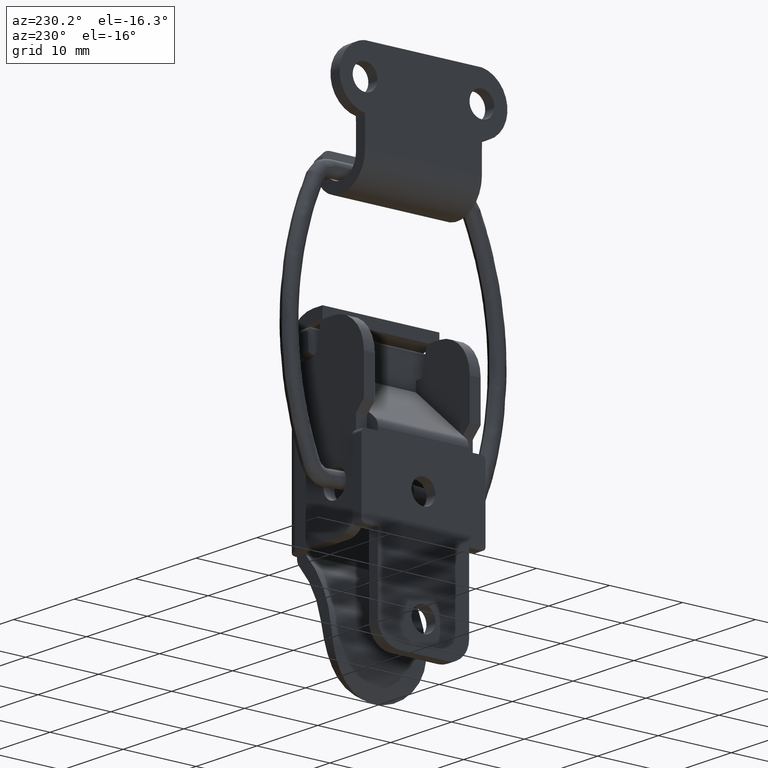
[diagram: clean part render]
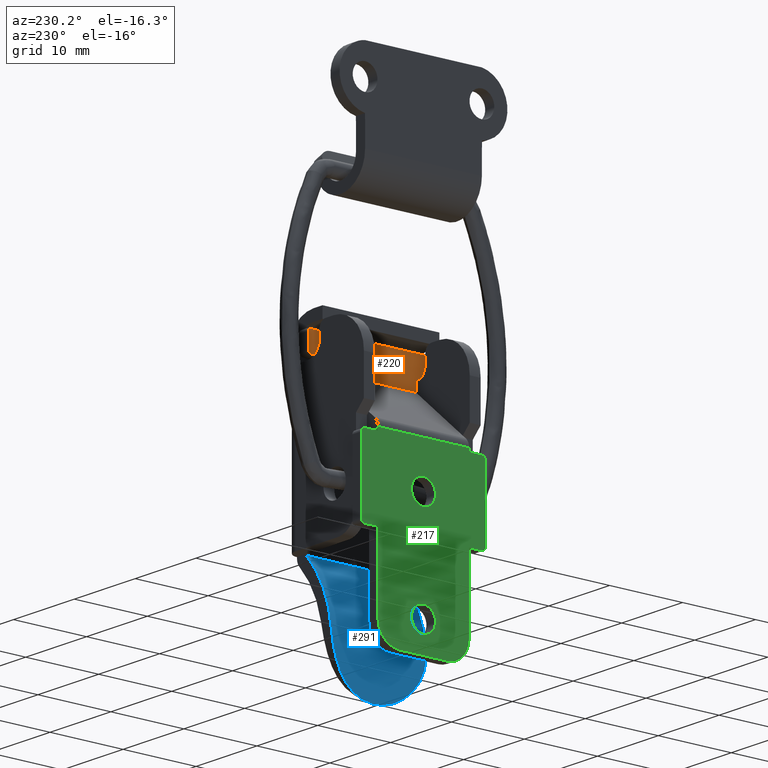
[diagram: same view with three faces highlighted in distinct colors, each labeled with its STEP entity id]
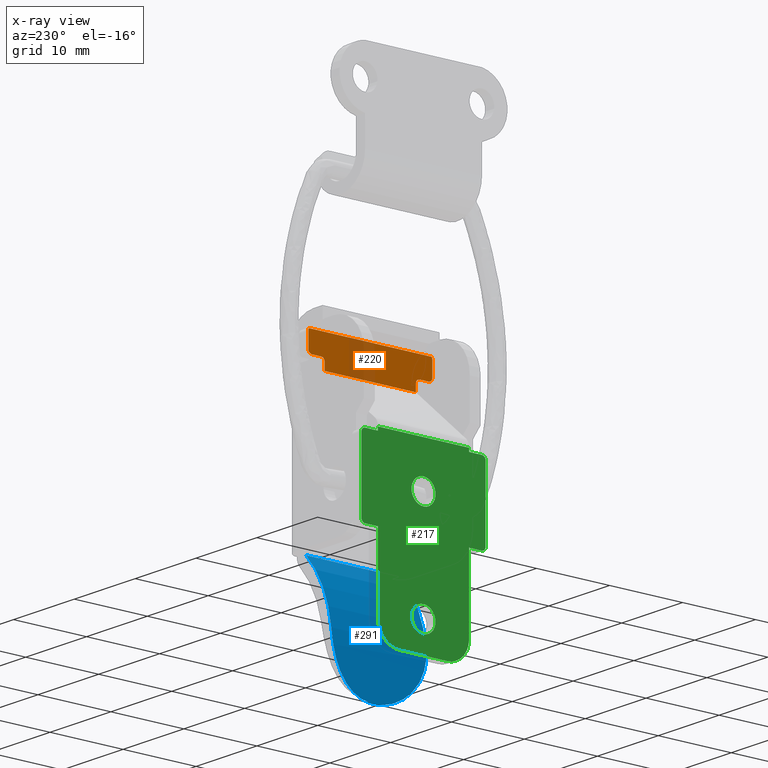
[diagram: x-ray of the same camera — body ghosted, the three highlighted faces saturated]
A machine part, auxiliary view with three faces highlighted in distinct colors.
The next image is the same camera in x-ray (body ghosted, the three faces saturated) — at least one of them is partly hidden behind the body in this view.
Their STEP definitions:

[orange] entity #220 — the highlighted planar face has unit normal (1, 0, 0).
#220=ADVANCED_FACE('',(#659),#658,.F.);
#658=PLANE('',#1955);
#659=FACE_OUTER_BOUND('',#1956,.T.);
#1952=CARTESIAN_POINT('',(8.75000000000E+00,-1.70000000000E+00,1.87300000000E+01));
#1953=DIRECTION('',(1.00000000000E+00,0.00000000000E+00,0.00000000000E+00));
#1954=DIRECTION('',(0.00000000000E+00,0.00000000000E+00,-1.00000000000E+00));
#1955=AXIS2_PLACEMENT_3D('',#1952,#1953,#1954);
#1956=EDGE_LOOP('',(#2620,#2621,#2622,#2623,#2624,#2625,#2626,#2627,#2628,#2629,#2630,#2631,#2632,#2633));
#2620=ORIENTED_EDGE('',*,*,#3252,.T.);
#2621=ORIENTED_EDGE('',*,*,#3253,.T.);
#2622=ORIENTED_EDGE('',*,*,#3174,.T.);
#2623=ORIENTED_EDGE('',*,*,#3254,.T.);
#2624=ORIENTED_EDGE('',*,*,#3168,.F.);
#2625=ORIENTED_EDGE('',*,*,#3167,.T.);
#2626=ORIENTED_EDGE('',*,*,#3173,.F.);
#2627=ORIENTED_EDGE('',*,*,#3255,.T.);
#2628=ORIENTED_EDGE('',*,*,#3256,.F.);
#2629=ORIENTED_EDGE('',*,*,#3257,.T.);
#2630=ORIENTED_EDGE('',*,*,#3258,.F.);
#2631=ORIENTED_EDGE('',*,*,#3250,.T.);
#2632=ORIENTED_EDGE('',*,*,#3259,.T.);
#2633=ORIENTED_EDGE('',*,*,#3260,.T.);
#3167=EDGE_CURVE('',#3742,#3770,#3777,.T.);
#3168=EDGE_CURVE('',#3742,#3783,#3784,.T.);
#3173=EDGE_CURVE('',#3810,#3770,#3817,.T.);
#3174=EDGE_CURVE('',#3823,#3824,#3825,.T.);
#3250=EDGE_CURVE('',#4343,#4336,#4344,.T.);
#3252=EDGE_CURVE('',#4356,#4357,#4358,.T.);
#3253=EDGE_CURVE('',#4357,#3823,#4364,.T.);
#3254=EDGE_CURVE('',#3824,#3783,#4370,.T.);
#3255=EDGE_CURVE('',#3810,#4376,#4377,.T.);
#3256=EDGE_CURVE('',#4383,#4376,#4384,.T.);
#3257=EDGE_CURVE('',#4383,#4390,#4391,.T.);
#3258=EDGE_CURVE('',#4343,#4390,#4397,.T.);
#3259=EDGE_CURVE('',#4336,#4403,#4404,.T.);
#3260=EDGE_CURVE('',#4403,#4356,#4410,.T.);
#3742=VERTEX_POINT('',#5937);
#3770=VERTEX_POINT('',#5960);
#3777=CIRCLE('',#5967,5.00000000000E-01);
#3783=VERTEX_POINT('',#5968);
#3784=LINE('',#5969,#5970);
#3810=VERTEX_POINT('',#5986);
#3817=LINE('',#5990,#5991);
#3823=VERTEX_POINT('',#5993);
#3824=VERTEX_POINT('',#5994);
#3825=LINE('',#5995,#5996);
#4336=VERTEX_POINT('',#6312);
#4343=VERTEX_POINT('',#6316);
#4344=LINE('',#6317,#6318);
#4356=VERTEX_POINT('',#6323);
#4357=VERTEX_POINT('',#6324);
#4358=LINE('',#6325,#6326);
#4364=CIRCLE('',#6331,5.00000000000E-01);
#4370=CIRCLE('',#6335,5.00000000000E-01);
#4376=VERTEX_POINT('',#6336);
#4377=CIRCLE('',#6340,5.00000000000E-01);
#4383=VERTEX_POINT('',#6341);
#4384=LINE('',#6342,#6343);
#4390=VERTEX_POINT('',#6345);
#4391=CIRCLE('',#6349,5.00000000000E-01);
#4397=LINE('',#6350,#6351);
#4403=VERTEX_POINT('',#6353);
#4404=LINE('',#6354,#6355);
#4410=CIRCLE('',#6360,5.00000000000E-01);
#5937=CARTESIAN_POINT('',(8.75000000000E+00,1.69000000000E+01,1.83000000000E+01));
#5960=CARTESIAN_POINT('',(8.75000000000E+00,1.70000000000E+01,1.80000000000E+01));
#5964=CARTESIAN_POINT('',(8.75000000000E+00,1.65000000000E+01,1.80000000000E+01));
#5965=DIRECTION('',(-1.00000000000E+00,-0.00000000000E+00,-0.00000000000E+00));
#5966=DIRECTION('',(-0.00000000000E+00,-0.00000000000E+00,1.00000000000E+00));
#5967=AXIS2_PLACEMENT_3D('',#5964,#5965,#5966);
#5968=CARTESIAN_POINT('',(8.75000000000E+00,1.00000000000E-01,1.83000000000E+01));
#5969=CARTESIAN_POINT('',(8.75000000000E+00,1.69000000000E+01,1.83000000000E+01));
#5970=VECTOR('',#5971,1.68000000000E+01);
#5971=DIRECTION('',(0.00000000000E+00,-1.00000000000E+00,0.00000000000E+00));
#5986=CARTESIAN_POINT('',(8.75000000000E+00,1.70000000000E+01,1.60000000000E+01));
#5990=CARTESIAN_POINT('',(8.75000000000E+00,1.70000000000E+01,1.60000000000E+01));
#5991=VECTOR('',#5992,2.00000000000E+00);
#5992=DIRECTION('',(0.00000000000E+00,0.00000000000E+00,1.00000000000E+00));
#5993=CARTESIAN_POINT('',(8.75000000000E+00,0.00000000000E+00,1.60000000000E+01));
#5994=CARTESIAN_POINT('',(8.75000000000E+00,0.00000000000E+00,1.80000000000E+01));
#5995=CARTESIAN_POINT('',(8.75000000000E+00,0.00000000000E+00,1.60000000000E+01));
#5996=VECTOR('',#5997,2.00000000000E+00);
#5997=DIRECTION('',(0.00000000000E+00,0.00000000000E+00,1.00000000000E+00));
#6312=CARTESIAN_POINT('',(8.75000000000E+00,2.25000000000E+00,1.39999999999E+01));
#6316=CARTESIAN_POINT('',(8.75000000000E+00,1.47500000000E+01,1.39999999999E+01));
#6317=CARTESIAN_POINT('',(8.75000000000E+00,1.47500000000E+01,1.39999999999E+01));
#6318=VECTOR('',#6319,1.25000000000E+01);
#6319=DIRECTION('',(0.00000000000E+00,-1.00000000000E+00,0.00000000000E+00));
#6323=CARTESIAN_POINT('',(8.75000000000E+00,1.75000000000E+00,1.55000000000E+01));
#6324=CARTESIAN_POINT('',(8.75000000000E+00,5.00000000000E-01,1.55000000000E+01));
#6325=CARTESIAN_POINT('',(8.75000000000E+00,1.75000000000E+00,1.55000000000E+01));
#6326=VECTOR('',#6327,1.25000000000E+00);
#6327=DIRECTION('',(0.00000000000E+00,-1.00000000000E+00,0.00000000000E+00));
#6328=CARTESIAN_POINT('',(8.75000000000E+00,5.00000000000E-01,1.60000000000E+01));
#6329=DIRECTION('',(-1.00000000000E+00,-0.00000000000E+00,-0.00000000000E+00));
#6330=DIRECTION('',(-0.00000000000E+00,-0.00000000000E+00,1.00000000000E+00));
#6331=AXIS2_PLACEMENT_3D('',#6328,#6329,#6330);
#6332=CARTESIAN_POINT('',(8.75000000000E+00,5.00000000000E-01,1.80000000000E+01));
#6333=DIRECTION('',(-1.00000000000E+00,-0.00000000000E+00,-0.00000000000E+00));
#6334=DIRECTION('',(-0.00000000000E+00,-0.00000000000E+00,1.00000000000E+00));
#6335=AXIS2_PLACEMENT_3D('',#6332,#6333,#6334);
#6336=CARTESIAN_POINT('',(8.75000000000E+00,1.65000000000E+01,1.55000000000E+01));
#6337=CARTESIAN_POINT('',(8.74999999999E+00,1.65000000000E+01,1.60000000000E+01));
#6338=DIRECTION('',(-1.00000000000E+00,-0.00000000000E+00,-0.00000000000E+00));
#6339=DIRECTION('',(-0.00000000000E+00,-0.00000000000E+00,1.00000000000E+00));
#6340=AXIS2_PLACEMENT_3D('',#6337,#6338,#6339);
#6341=CARTESIAN_POINT('',(8.75000000000E+00,1.52500000000E+01,1.55000000000E+01));
#6342=CARTESIAN_POINT('',(8.75000000000E+00,1.52500000000E+01,1.55000000000E+01));
#6343=VECTOR('',#6344,1.25000000000E+00);
#6344=DIRECTION('',(0.00000000000E+00,1.00000000000E+00,0.00000000000E+00));
#6345=CARTESIAN_POINT('',(8.75000000000E+00,1.47500000000E+01,1.50000000000E+01));
#6346=CARTESIAN_POINT('',(8.74999999999E+00,1.52500000000E+01,1.50000000000E+01));
#6347=DIRECTION('',(1.00000000000E+00,0.00000000000E+00,0.00000000000E+00));
#6348=DIRECTION('',(-0.00000000000E+00,-0.00000000000E+00,1.00000000000E+00));
#6349=AXIS2_PLACEMENT_3D('',#6346,#6347,#6348);
#6350=CARTESIAN_POINT('',(8.75000000000E+00,1.47500000000E+01,1.39999999999E+01));
#6351=VECTOR('',#6352,1.00000000013E+00);
#6352=DIRECTION('',(0.00000000000E+00,0.00000000000E+00,1.00000000000E+00));
#6353=CARTESIAN_POINT('',(8.75000000000E+00,2.25000000000E+00,1.50000000000E+01));
#6354=CARTESIAN_POINT('',(8.75000000000E+00,2.25000000000E+00,1.39999999999E+01));
#6355=VECTOR('',#6356,1.00000000013E+00);
#6356=DIRECTION('',(0.00000000000E+00,0.00000000000E+00,1.00000000000E+00));
#6357=CARTESIAN_POINT('',(8.74999999999E+00,1.75000000000E+00,1.50000000000E+01));
#6358=DIRECTION('',(1.00000000000E+00,0.00000000000E+00,0.00000000000E+00));
#6359=DIRECTION('',(-0.00000000000E+00,-0.00000000000E+00,1.00000000000E+00));
#6360=AXIS2_PLACEMENT_3D('',#6357,#6358,#6359);

[blue] entity #291 — the highlighted cylindrical surface (partial cylindrical patch) has radius 15.5 mm, axis along (0, 1, 0).
#291=ADVANCED_FACE('',(#1373),#1372,.T.);
#1372=CYLINDRICAL_SURFACE('',#2314,1.55000000000E+01);
#1373=FACE_OUTER_BOUND('',#2315,.T.);
#2311=CARTESIAN_POINT('',(1.77643212487E+01,1.00000000000E+03,-1.67828475794E+01));
#2312=DIRECTION('',(-0.00000000000E+00,1.00000000000E+00,0.00000000000E+00));
#2313=DIRECTION('',(-0.00000000000E+00,-0.00000000000E+00,1.00000000000E+00));
#2314=AXIS2_PLACEMENT_3D('',#2311,#2312,#2313);
#2315=EDGE_LOOP('',(#2999,#3000,#3001,#3002));
#2999=ORIENTED_EDGE('',*,*,#3307,.F.);
#3000=ORIENTED_EDGE('',*,*,#3301,.T.);
#3001=ORIENTED_EDGE('',*,*,#3304,.T.);
#3002=ORIENTED_EDGE('',*,*,#3381,.F.);
#3301=EDGE_CURVE('',#4671,#4672,#4673,.T.);
#3304=EDGE_CURVE('',#4672,#4691,#4692,.T.);
#3307=EDGE_CURVE('',#4671,#4711,#4712,.T.);
#3381=EDGE_CURVE('',#4711,#4691,#5206,.T.);
#4671=VERTEX_POINT('',#6564);
#4672=VERTEX_POINT('',#6565);
#4673=(BOUNDED_CURVE() B_SPLINE_CURVE(3,(#6566,#6567,#6568,#6569,#6570,#6571,#6572,#6573,#6574,#6575,#6576,#6577,#6578,#6579,#6580,#6581,#6582,#6583,#6584,#6585,#6586,#6587,#6588,#6589,#6590,#6591,#6592,#6593,#6594,#6595,#6596,#6597,#6598,#6599,#6600,#6601,#6602,#6603,#6604,#6605,#6606,#6607,#6608,#6609,#6610,#6611,#6612,#6613),.UNSPECIFIED.,.F.,.F.) B_SPLINE_CURVE_WITH_KNOTS((4,2,2,2,2,2,2,2,2,2,2,2,2,2,2,2,2,2,2,2,2,2,2,4),(-1.07861204129E-02,-9.43834462697E-03,-8.76445673402E-03,-8.09056884108E-03,-6.74279305519E-03,-6.06890516224E-03,-5.39501726930E-03,-4.04724148341E-03,-3.37335359046E-03,-2.69946569752E-03,-2.02557780457E-03,-1.35168991163E-03,-3.91412573858E-06,1.34386166015E-03,2.69163744604E-03,4.03941323193E-03,4.71330112488E-03,5.38718901782E-03,6.06107691077E-03,6.73496480371E-03,8.08274058960E-03,8.75662848255E-03,9.43051637549E-03,1.07782921614E-02),.UNSPECIFIED.) CURVE() GEOMETRIC_REPRESENTATION_ITEM() RATIONAL_B_SPLINE_CURVE((1.00000000000E+00,1.00000000000E+00,1.00000000000E+00,1.00000000000E+00,1.00000000000E+00,1.00000000000E+00,1.00000000000E+00,1.00000000000E+00,1.00000000000E+00,1.00000000000E+00,1.00000000000E+00,1.00000000000E+00,1.00000000000E+00,1.00000000000E+00,1.00000000000E+00,1.00000000000E+00,1.00000000000E+00,1.00000000000E+00,1.00000000000E+00,1.00000000000E+00,1.00000000000E+00,1.00000000000E+00,1.00000000000E+00,1.00000000000E+00,1.00000000000E+00,1.00000000000E+00,1.00000000000E+00,1.00000000000E+00,1.00000000000E+00,1.00000000000E+00,1.00000000000E+00,1.00000000000E+00,1.00000000000E+00,1.00000000000E+00,1.00000000000E+00,1.00000000000E+00,1.00000000000E+00,1.00000000000E+00,1.00000000000E+00,1.00000000000E+00,1.00000000000E+00,1.00000000000E+00,1.00000000000E+00,1.00000000000E+00,1.00000000000E+00,1.00000000000E+00,1.00000000000E+00,1.00000000000E+00)) REPRESENTATION_ITEM('') );
#4691=VERTEX_POINT('',#6620);
#4692=CIRCLE('',#6624,1.55000000000E+01);
#4711=VERTEX_POINT('',#6632);
#4712=CIRCLE('',#6636,1.55000000000E+01);
#5206=LINE('',#6927,#6928);
#6564=CARTESIAN_POINT('',(2.37406817584E+00,1.45000000000E+01,-1.49416223479E+01));
#6565=CARTESIAN_POINT('',(2.37406817584E+00,1.50000000000E+00,-1.49416223479E+01));
#6566=CARTESIAN_POINT('',(2.37406817581E+00,1.45000000000E+01,-1.49416223479E+01));
#6567=CARTESIAN_POINT('',(2.32010073919E+00,1.45000000000E+01,-1.53927200698E+01));
#6568=CARTESIAN_POINT('',(2.28661977557E+00,1.44700851394E+01,-1.58405411075E+01));
#6569=CARTESIAN_POINT('',(2.26519851493E+00,1.43730175159E+01,-1.65062782782E+01));
#6570=CARTESIAN_POINT('',(2.26286295814E+00,1.43319279410E+01,-1.67271870778E+01));
#6571=CARTESIAN_POINT('',(2.26751727409E+00,1.42304869152E+01,-1.71667405305E+01));
#6572=CARTESIAN_POINT('',(2.27459337156E+00,1.41696778042E+01,-1.73866780860E+01));
#6573=CARTESIAN_POINT('',(2.30868083218E+00,1.39587940705E+01,-1.80311677578E+01));
#6574=CARTESIAN_POINT('',(2.34823144728E+00,1.37811566033E+01,-1.84402914820E+01));
#6575=CARTESIAN_POINT('',(2.42563185691E+00,1.34547862220E+01,-1.90217857220E+01));
#6576=CARTESIAN_POINT('',(2.45444876656E+00,1.33359684619E+01,-1.92102303042E+01));
#6577=CARTESIAN_POINT('',(2.51689882690E+00,1.30768917387E+01,-1.95757836337E+01));
#6578=CARTESIAN_POINT('',(2.55062927812E+00,1.29361699838E+01,-1.97531346662E+01));
#6579=CARTESIAN_POINT('',(2.65408095394E+00,1.24920506927E+01,-2.02536908843E+01));
#6580=CARTESIAN_POINT('',(2.72682966372E+00,1.21636732685E+01,-2.05507330874E+01));
#6581=CARTESIAN_POINT('',(2.83225788151E+00,1.16216501488E+01,-2.09423862787E+01));
#6582=CARTESIAN_POINT('',(2.86699022161E+00,1.14314276028E+01,-2.10645342763E+01));
#6583=CARTESIAN_POINT('',(2.93238259597E+00,1.10415476553E+01,-2.12858364205E+01));
#6584=CARTESIAN_POINT('',(2.96310753981E+00,1.08417480040E+01,-2.13853196508E+01));
#6585=CARTESIAN_POINT('',(3.01949172518E+00,1.04326651316E+01,-2.15628767369E+01));
#6586=CARTESIAN_POINT('',(3.04515342656E+00,1.02233819526E+01,-2.16409499193E+01));
#6587=CARTESIAN_POINT('',(3.09036150410E+00,9.79525832054E+00,-2.17758391812E+01));
#6588=CARTESIAN_POINT('',(3.10998112763E+00,9.57530513620E+00,-2.18328612318E+01));
#6589=CARTESIAN_POINT('',(3.15750754823E+00,8.90938233595E+00,-2.19693958160E+01));
#6590=CARTESIAN_POINT('',(3.17408233479E+00,8.45960706527E+00,-2.20149531322E+01));
#6591=CARTESIAN_POINT('',(3.17427359393E+00,7.54833263274E+00,-2.20154864464E+01));
#6592=CARTESIAN_POINT('',(3.15789068640E+00,7.10070602666E+00,-2.19704380887E+01));
#6593=CARTESIAN_POINT('',(3.09579621969E+00,6.22137294315E+00,-2.17921671476E+01));
#6594=CARTESIAN_POINT('',(3.04923567818E+00,5.78492313875E+00,-2.16563292728E+01));
#6595=CARTESIAN_POINT('',(2.93657149666E+00,4.96398807469E+00,-2.13019630299E+01));
#6596=CARTESIAN_POINT('',(2.87058136450E+00,4.57671119654E+00,-2.10839688236E+01));
#6597=CARTESIAN_POINT('',(2.76485140554E+00,4.03117671283E+00,-2.06923472083E+01));
#6598=CARTESIAN_POINT('',(2.72848538057E+00,3.85537282473E+00,-2.05507597958E+01));
#6599=CARTESIAN_POINT('',(2.65687034223E+00,3.52427384557E+00,-2.02524945114E+01));
#6600=CARTESIAN_POINT('',(2.62139863337E+00,3.36779860799E+00,-2.00950284643E+01));
#6601=CARTESIAN_POINT('',(2.55268186556E+00,3.07249533558E+00,-1.97635647457E+01));
#6602=CARTESIAN_POINT('',(2.51943408350E+00,2.93366935224E+00,-1.95895657686E+01));
#6603=CARTESIAN_POINT('',(2.45676466609E+00,2.67359886255E+00,-1.92247655025E+01));
#6604=CARTESIAN_POINT('',(2.42726634904E+00,2.55201683032E+00,-1.90331193647E+01));
#6605=CARTESIAN_POINT('',(2.34875833699E+00,2.22123682574E+00,-1.84460747212E+01));
#6606=CARTESIAN_POINT('',(2.30902271226E+00,2.04283204814E+00,-1.80351534122E+01));
#6607=CARTESIAN_POINT('',(2.27479564909E+00,1.83181407633E+00,-1.73917214470E+01));
#6608=CARTESIAN_POINT('',(2.26762875994E+00,1.77077365688E+00,-1.71716563636E+01));
#6609=CARTESIAN_POINT('',(2.26284019406E+00,1.66872345186E+00,-1.67305458160E+01));
#6610=CARTESIAN_POINT('',(2.26514268548E+00,1.62743201508E+00,-1.65089683351E+01));
#6611=CARTESIAN_POINT('',(2.28652651914E+00,1.52994715130E+00,-1.58415430540E+01));
#6612=CARTESIAN_POINT('',(2.32006489356E+00,1.50000000000E+00,-1.53930196928E+01));
#6613=CARTESIAN_POINT('',(2.37406817582E+00,1.50000000000E+00,-1.49416223479E+01));
#6620=CARTESIAN_POINT('',(6.50000000000E+00,1.50000000000E+00,-6.13554431494E+00));
#6621=CARTESIAN_POINT('',(1.77643212487E+01,1.50000000000E+00,-1.67828475794E+01));
#6622=DIRECTION('',(0.00000000000E+00,1.00000000000E+00,0.00000000000E+00));
#6623=DIRECTION('',(-0.00000000000E+00,-0.00000000000E+00,1.00000000000E+00));
#6624=AXIS2_PLACEMENT_3D('',#6621,#6622,#6623);
#6632=CARTESIAN_POINT('',(6.50000000000E+00,1.45000000000E+01,-6.13554431494E+00));
#6633=CARTESIAN_POINT('',(1.77643212487E+01,1.45000000000E+01,-1.67828475794E+01));
#6634=DIRECTION('',(0.00000000000E+00,1.00000000000E+00,0.00000000000E+00));
#6635=DIRECTION('',(-0.00000000000E+00,-0.00000000000E+00,1.00000000000E+00));
#6636=AXIS2_PLACEMENT_3D('',#6633,#6634,#6635);
#6927=CARTESIAN_POINT('',(6.50000000000E+00,1.45000000000E+01,-6.13554431494E+00));
#6928=VECTOR('',#6929,1.30000000000E+01);
#6929=DIRECTION('',(0.00000000000E+00,-1.00000000000E+00,0.00000000000E+00));

[green] entity #217 — the highlighted planar face has unit normal (1, 0, 0).
#217=ADVANCED_FACE('',(#627,#628,#629),#626,.F.);
#626=PLANE('',#1938);
#627=FACE_OUTER_BOUND('',#1939,.T.);
#628=FACE_BOUND('',#1940,.T.);
#629=FACE_BOUND('',#1941,.T.);
#1935=CARTESIAN_POINT('',(0.00000000000E+00,-1.70000000000E+00,8.35425841400E+00));
#1936=DIRECTION('',(1.00000000000E+00,0.00000000000E+00,0.00000000000E+00));
#1937=DIRECTION('',(0.00000000000E+00,0.00000000000E+00,-1.00000000000E+00));
#1938=AXIS2_PLACEMENT_3D('',#1935,#1936,#1937);
#1939=EDGE_LOOP('',(#2590,#2591,#2592,#2593,#2594,#2595,#2596,#2597,#2598,#2599,#2600,#2601,#2602,#2603,#2604,#2605,#2606,#2607));
#1940=EDGE_LOOP('',(#2608,#2609));
#1941=EDGE_LOOP('',(#2610,#2611));
#2590=ORIENTED_EDGE('',*,*,#3227,.F.);
#2591=ORIENTED_EDGE('',*,*,#3228,.T.);
#2592=ORIENTED_EDGE('',*,*,#3182,.F.);
#2593=ORIENTED_EDGE('',*,*,#3229,.T.);
#2594=ORIENTED_EDGE('',*,*,#3230,.T.);
#2595=ORIENTED_EDGE('',*,*,#3231,.T.);
#2596=ORIENTED_EDGE('',*,*,#3232,.T.);
#2597=ORIENTED_EDGE('',*,*,#3224,.T.);
#2598=ORIENTED_EDGE('',*,*,#3233,.T.);
#2599=ORIENTED_EDGE('',*,*,#3234,.F.);
#2600=ORIENTED_EDGE('',*,*,#3235,.F.);
#2601=ORIENTED_EDGE('',*,*,#3236,.T.);
#2602=ORIENTED_EDGE('',*,*,#3180,.T.);
#2603=ORIENTED_EDGE('',*,*,#3237,.T.);
#2604=ORIENTED_EDGE('',*,*,#3238,.T.);
#2605=ORIENTED_EDGE('',*,*,#3239,.T.);
#2606=ORIENTED_EDGE('',*,*,#3240,.F.);
#2607=ORIENTED_EDGE('',*,*,#3241,.F.);
#2608=ORIENTED_EDGE('',*,*,#3242,.T.);
#2609=ORIENTED_EDGE('',*,*,#3243,.T.);
#2610=ORIENTED_EDGE('',*,*,#3244,.T.);
#2611=ORIENTED_EDGE('',*,*,#3245,.T.);
#3180=EDGE_CURVE('',#3866,#3859,#3867,.T.);
#3182=EDGE_CURVE('',#3879,#3880,#3881,.T.);
#3224=EDGE_CURVE('',#4166,#4167,#4168,.T.);
#3227=EDGE_CURVE('',#4186,#4187,#4188,.T.);
#3228=EDGE_CURVE('',#4186,#3880,#4194,.T.);
#3229=EDGE_CURVE('',#3879,#4200,#4201,.T.);
#3230=EDGE_CURVE('',#4200,#4207,#4208,.T.);
#3231=EDGE_CURVE('',#4207,#4214,#4215,.T.);
#3232=EDGE_CURVE('',#4214,#4166,#4221,.T.);
#3233=EDGE_CURVE('',#4167,#4227,#4228,.T.);
#3234=EDGE_CURVE('',#4234,#4227,#4235,.T.);
#3235=EDGE_CURVE('',#4241,#4234,#4242,.T.);
#3236=EDGE_CURVE('',#4241,#3866,#4248,.T.);
#3237=EDGE_CURVE('',#3859,#4254,#4255,.T.);
#3238=EDGE_CURVE('',#4254,#4261,#4262,.T.);
#3239=EDGE_CURVE('',#4261,#4268,#4269,.T.);
#3240=EDGE_CURVE('',#4275,#4268,#4276,.T.);
#3241=EDGE_CURVE('',#4187,#4275,#4282,.T.);
#3242=EDGE_CURVE('',#4288,#4289,#4290,.T.);
#3243=EDGE_CURVE('',#4289,#4288,#4296,.T.);
#3244=EDGE_CURVE('',#4302,#4303,#4304,.T.);
#3245=EDGE_CURVE('',#4303,#4302,#4310,.T.);
#3859=VERTEX_POINT('',#6014);
#3866=VERTEX_POINT('',#6018);
#3867=LINE('',#6019,#6020);
#3879=VERTEX_POINT('',#6025);
#3880=VERTEX_POINT('',#6026);
#3881=LINE('',#6027,#6028);
#4166=VERTEX_POINT('',#6205);
#4167=VERTEX_POINT('',#6206);
#4168=LINE('',#6207,#6208);
#4186=VERTEX_POINT('',#6216);
#4187=VERTEX_POINT('',#6217);
#4188=LINE('',#6218,#6219);
#4194=CIRCLE('',#6224,5.00000000000E-01);
#4200=VERTEX_POINT('',#6225);
#4201=CIRCLE('',#6229,5.00000000000E-01);
#4207=VERTEX_POINT('',#6230);
#4208=LINE('',#6231,#6232);
#4214=VERTEX_POINT('',#6234);
#4215=LINE('',#6235,#6236);
#4221=CIRCLE('',#6241,3.00000000000E+00);
#4227=VERTEX_POINT('',#6242);
#4228=CIRCLE('',#6246,3.00000000000E+00);
#4234=VERTEX_POINT('',#6247);
#4235=LINE('',#6248,#6249);
#4241=VERTEX_POINT('',#6251);
#4242=LINE('',#6252,#6253);
#4248=CIRCLE('',#6258,5.00000000000E-01);
#4254=VERTEX_POINT('',#6259);
#4255=CIRCLE('',#6263,5.00000000000E-01);
#4261=VERTEX_POINT('',#6264);
#4262=LINE('',#6265,#6266);
#4268=VERTEX_POINT('',#6268);
#4269=LINE('',#6269,#6270);
#4275=VERTEX_POINT('',#6272);
#4276=LINE('',#6273,#6274);
#4282=LINE('',#6276,#6277);
#4288=VERTEX_POINT('',#6279);
#4289=VERTEX_POINT('',#6280);
#4290=CIRCLE('',#6284,1.65000000000E+00);
#4296=CIRCLE('',#6288,1.65000000000E+00);
#4302=VERTEX_POINT('',#6289);
#4303=VERTEX_POINT('',#6290);
#4304=CIRCLE('',#6294,1.65000000000E+00);
#4310=CIRCLE('',#6298,1.65000000000E+00);
#6014=CARTESIAN_POINT('',(0.00000000000E+00,0.00000000000E+00,5.00000000000E+00));
#6018=CARTESIAN_POINT('',(0.00000000000E+00,0.00000000000E+00,-4.50000000000E+00));
#6019=CARTESIAN_POINT('',(0.00000000000E+00,0.00000000000E+00,-4.50000000000E+00));
#6020=VECTOR('',#6021,9.50000000000E+00);
#6021=DIRECTION('',(0.00000000000E+00,0.00000000000E+00,1.00000000000E+00));
#6025=CARTESIAN_POINT('',(0.00000000000E+00,1.70000000000E+01,-4.50000000000E+00));
#6026=CARTESIAN_POINT('',(0.00000000000E+00,1.70000000000E+01,5.00000000000E+00));
#6027=CARTESIAN_POINT('',(0.00000000000E+00,1.70000000000E+01,-4.50000000000E+00));
#6028=VECTOR('',#6029,9.50000000000E+00);
#6029=DIRECTION('',(0.00000000000E+00,0.00000000000E+00,1.00000000000E+00));
#6205=CARTESIAN_POINT('',(0.00000000000E+00,1.17500000000E+01,-1.80000000000E+01));
#6206=CARTESIAN_POINT('',(0.00000000000E+00,5.25000000000E+00,-1.80000000000E+01));
#6207=CARTESIAN_POINT('',(0.00000000000E+00,1.17500000000E+01,-1.80000000000E+01));
#6208=VECTOR('',#6209,6.50000000000E+00);
#6209=DIRECTION('',(0.00000000000E+00,-1.00000000000E+00,0.00000000000E+00));
#6216=CARTESIAN_POINT('',(0.00000000000E+00,1.65000000000E+01,5.50000000000E+00));
#6217=CARTESIAN_POINT('',(0.00000000000E+00,1.47500000000E+01,5.50000000000E+00));
#6218=CARTESIAN_POINT('',(0.00000000000E+00,1.65000000000E+01,5.50000000000E+00));
#6219=VECTOR('',#6220,1.75000000000E+00);
#6220=DIRECTION('',(0.00000000000E+00,-1.00000000000E+00,0.00000000000E+00));
#6221=CARTESIAN_POINT('',(0.00000000000E+00,1.65000000000E+01,5.00000000000E+00));
#6222=DIRECTION('',(-1.00000000000E+00,0.00000000000E+00,-0.00000000000E+00));
#6223=DIRECTION('',(0.00000000000E+00,1.00000000000E+00,-1.83690953073E-16));
#6224=AXIS2_PLACEMENT_3D('',#6221,#6222,#6223);
#6225=CARTESIAN_POINT('',(0.00000000000E+00,1.65000000000E+01,-5.00000000000E+00));
#6226=CARTESIAN_POINT('',(0.00000000000E+00,1.65000000000E+01,-4.50000000000E+00));
#6227=DIRECTION('',(-1.00000000000E+00,-0.00000000000E+00,-0.00000000000E+00));
#6228=DIRECTION('',(-0.00000000000E+00,-0.00000000000E+00,1.00000000000E+00));
#6229=AXIS2_PLACEMENT_3D('',#6226,#6227,#6228);
#6230=CARTESIAN_POINT('',(0.00000000000E+00,1.47500000000E+01,-5.00000000000E+00));
#6231=CARTESIAN_POINT('',(0.00000000000E+00,1.65000000000E+01,-5.00000000000E+00));
#6232=VECTOR('',#6233,1.75000000000E+00);
#6233=DIRECTION('',(0.00000000000E+00,-1.00000000000E+00,0.00000000000E+00));
#6234=CARTESIAN_POINT('',(0.00000000000E+00,1.47500000000E+01,-1.50000000000E+01));
#6235=CARTESIAN_POINT('',(0.00000000000E+00,1.47500000000E+01,-5.00000000000E+00));
#6236=VECTOR('',#6237,1.00000000000E+01);
#6237=DIRECTION('',(0.00000000000E+00,0.00000000000E+00,-1.00000000000E+00));
#6238=CARTESIAN_POINT('',(0.00000000000E+00,1.17500000000E+01,-1.50000000000E+01));
#6239=DIRECTION('',(-1.00000000000E+00,-0.00000000000E+00,-0.00000000000E+00));
#6240=DIRECTION('',(-0.00000000000E+00,-0.00000000000E+00,1.00000000000E+00));
#6241=AXIS2_PLACEMENT_3D('',#6238,#6239,#6240);
#6242=CARTESIAN_POINT('',(0.00000000000E+00,2.25000000000E+00,-1.50000000000E+01));
#6243=CARTESIAN_POINT('',(0.00000000000E+00,5.25000000000E+00,-1.50000000000E+01));
#6244=DIRECTION('',(-1.00000000000E+00,-0.00000000000E+00,-0.00000000000E+00));
#6245=DIRECTION('',(-0.00000000000E+00,-0.00000000000E+00,1.00000000000E+00));
#6246=AXIS2_PLACEMENT_3D('',#6243,#6244,#6245);
#6247=CARTESIAN_POINT('',(0.00000000000E+00,2.25000000000E+00,-5.00000000000E+00));
#6248=CARTESIAN_POINT('',(0.00000000000E+00,2.25000000000E+00,-5.00000000000E+00));
#6249=VECTOR('',#6250,1.00000000000E+01);
#6250=DIRECTION('',(0.00000000000E+00,0.00000000000E+00,-1.00000000000E+00));
#6251=CARTESIAN_POINT('',(0.00000000000E+00,5.00000000000E-01,-5.00000000000E+00));
#6252=CARTESIAN_POINT('',(0.00000000000E+00,5.00000000000E-01,-5.00000000000E+00));
#6253=VECTOR('',#6254,1.75000000000E+00);
#6254=DIRECTION('',(0.00000000000E+00,1.00000000000E+00,0.00000000000E+00));
#6255=CARTESIAN_POINT('',(0.00000000000E+00,5.00000000000E-01,-4.50000000000E+00));
#6256=DIRECTION('',(-1.00000000000E+00,-0.00000000000E+00,-0.00000000000E+00));
#6257=DIRECTION('',(-0.00000000000E+00,-0.00000000000E+00,1.00000000000E+00));
#6258=AXIS2_PLACEMENT_3D('',#6255,#6256,#6257);
#6259=CARTESIAN_POINT('',(0.00000000000E+00,5.00000000000E-01,5.50000000000E+00));
#6260=CARTESIAN_POINT('',(0.00000000000E+00,5.00000000000E-01,5.00000000000E+00));
#6261=DIRECTION('',(-1.00000000000E+00,-0.00000000000E+00,-0.00000000000E+00));
#6262=DIRECTION('',(-0.00000000000E+00,-0.00000000000E+00,1.00000000000E+00));
#6263=AXIS2_PLACEMENT_3D('',#6260,#6261,#6262);
#6264=CARTESIAN_POINT('',(0.00000000000E+00,2.25000000000E+00,5.50000000000E+00));
#6265=CARTESIAN_POINT('',(0.00000000000E+00,5.00000000000E-01,5.50000000000E+00));
#6266=VECTOR('',#6267,1.75000000000E+00);
#6267=DIRECTION('',(0.00000000000E+00,1.00000000000E+00,0.00000000000E+00));
#6268=CARTESIAN_POINT('',(0.00000000000E+00,2.25000000000E+00,5.95841674000E+00));
#6269=CARTESIAN_POINT('',(0.00000000000E+00,2.25000000000E+00,5.50000000000E+00));
#6270=VECTOR('',#6271,4.58416740000E-01);
#6271=DIRECTION('',(0.00000000000E+00,0.00000000000E+00,1.00000000000E+00));
#6272=CARTESIAN_POINT('',(0.00000000000E+00,1.47500000000E+01,5.95841674000E+00));
#6273=CARTESIAN_POINT('',(0.00000000000E+00,1.47500000000E+01,5.95841674000E+00));
#6274=VECTOR('',#6275,1.25000000000E+01);
#6275=DIRECTION('',(0.00000000000E+00,-1.00000000000E+00,0.00000000000E+00));
#6276=CARTESIAN_POINT('',(0.00000000000E+00,1.47500000000E+01,5.50000000000E+00));
#6277=VECTOR('',#6278,4.58416740000E-01);
#6278=DIRECTION('',(0.00000000000E+00,0.00000000000E+00,1.00000000000E+00));
#6279=CARTESIAN_POINT('',(0.00000000000E+00,8.50000000000E+00,-1.56500000000E+01));
#6280=CARTESIAN_POINT('',(0.00000000000E+00,8.50000000000E+00,-1.23500000000E+01));
#6281=CARTESIAN_POINT('',(0.00000000000E+00,8.50000000000E+00,-1.40000000000E+01));
#6282=DIRECTION('',(1.00000000000E+00,0.00000000000E+00,0.00000000000E+00));
#6283=DIRECTION('',(0.00000000000E+00,-1.22460635382E-16,-1.00000000000E+00));
#6284=AXIS2_PLACEMENT_3D('',#6281,#6282,#6283);
#6285=CARTESIAN_POINT('',(0.00000000000E+00,8.50000000000E+00,-1.40000000000E+01));
#6286=DIRECTION('',(1.00000000000E+00,0.00000000000E+00,0.00000000000E+00));
#6287=DIRECTION('',(0.00000000000E+00,-1.22460635382E-16,-1.00000000000E+00));
#6288=AXIS2_PLACEMENT_3D('',#6285,#6286,#6287);
#6289=CARTESIAN_POINT('',(0.00000000000E+00,8.50000000000E+00,-1.65000000000E+00));
#6290=CARTESIAN_POINT('',(0.00000000000E+00,8.50000000000E+00,1.65000000000E+00));
#6291=CARTESIAN_POINT('',(0.00000000000E+00,8.50000000000E+00,1.98951966013E-13));
#6292=DIRECTION('',(1.00000000000E+00,0.00000000000E+00,0.00000000000E+00));
#6293=DIRECTION('',(0.00000000000E+00,-1.22460635382E-16,-1.00000000000E+00));
#6294=AXIS2_PLACEMENT_3D('',#6291,#6292,#6293);
#6295=CARTESIAN_POINT('',(0.00000000000E+00,8.50000000000E+00,1.98951966013E-13));
#6296=DIRECTION('',(1.00000000000E+00,0.00000000000E+00,0.00000000000E+00));
#6297=DIRECTION('',(0.00000000000E+00,-1.22460635382E-16,-1.00000000000E+00));
#6298=AXIS2_PLACEMENT_3D('',#6295,#6296,#6297);